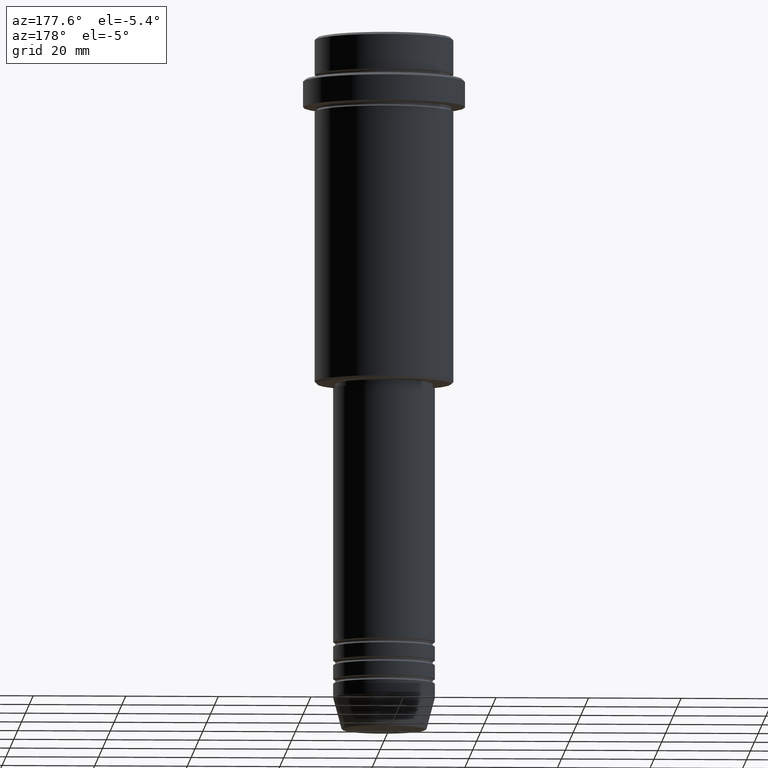
[diagram: clean part render]
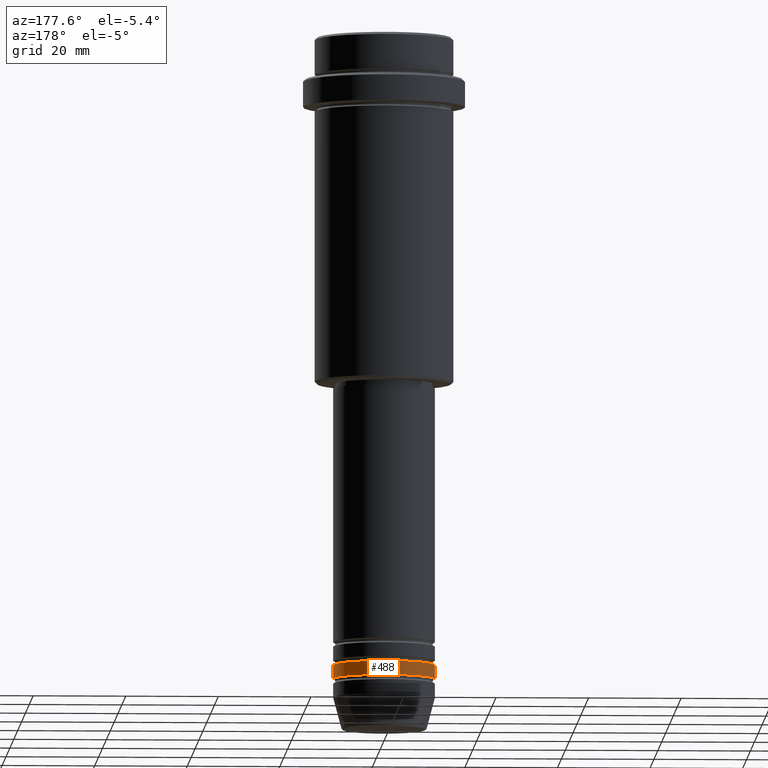
[diagram: same view with one face highlighted and labeled with its STEP entity id]
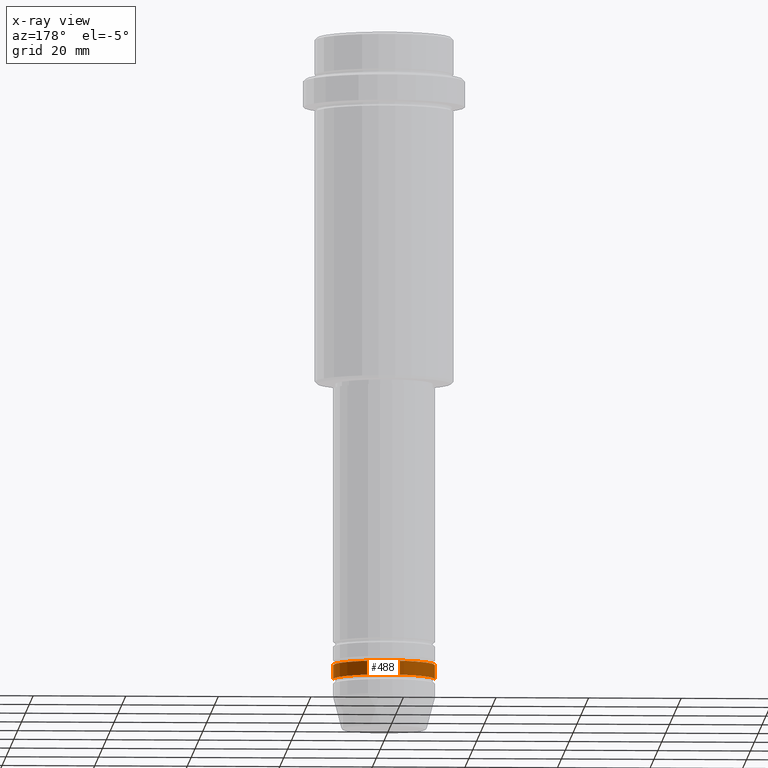
[diagram: x-ray of the same camera — body ghosted, the highlighted face saturated]
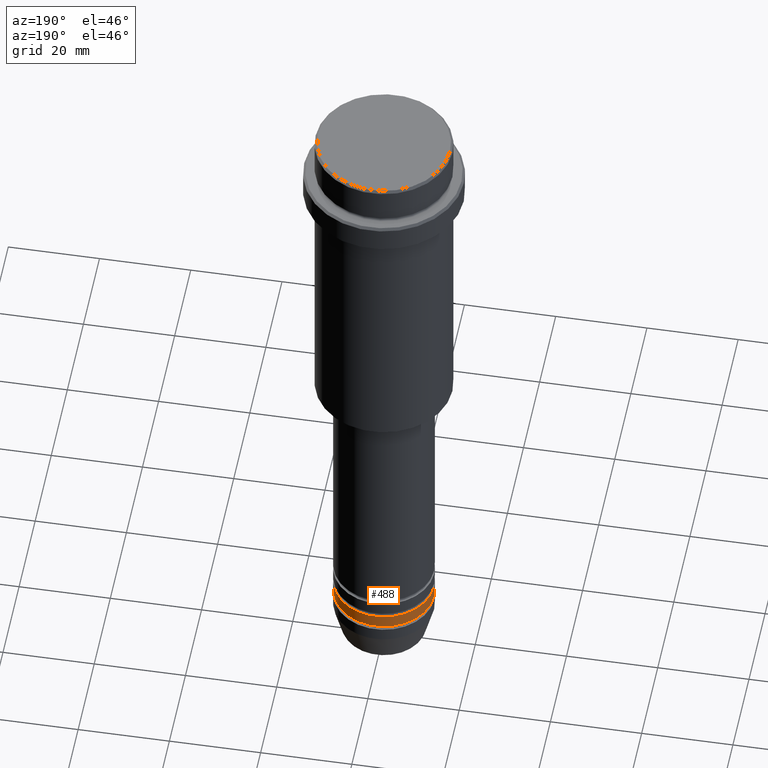
[diagram: same view with one face highlighted and labeled with its STEP entity id]
A machine part, auxiliary view. The second image highlights one B-rep face of the part: STEP entity #488.
The next image is the same camera in x-ray: the body ghosted, the highlighted face saturated — about 0% of this face is hidden behind the body in this view.
A second angle (auxiliary view) of the same face is appended — the face is thin or edge-on in the first view.
In plain terms, the highlighted cylindrical surface (partial cylindrical patch) has radius 11 mm, axis along (-0, -0, 1).
Its self-contained STEP definition (entity closure, byte-faithful):
#41 = DIRECTION ( 'NONE',  ( -0.000000000000000000, -0.000000000000000000, 1.000000000000000000 ) ) ;
#66 = ORIENTED_EDGE ( 'NONE', *, *, #116, .T. ) ;
#92 = VERTEX_POINT ( 'NONE', #424 ) ;
#116 = EDGE_CURVE ( 'NONE', #389, #92, #1287, .T. ) ;
#195 = CARTESIAN_POINT ( 'NONE',  ( -11.00000000000000000, 1.347111479062088405E-15, 0.000000000000000000 ) ) ;
#236 = EDGE_CURVE ( 'NONE', #389, #657, #1000, .T. ) ;
#322 = FACE_OUTER_BOUND ( 'NONE', #385, .T. ) ;
#329 = EDGE_CURVE ( 'NONE', #657, #1059, #567, .T. ) ;
#347 = EDGE_CURVE ( 'NONE', #92, #1059, #954, .T. ) ;
#385 = EDGE_LOOP ( 'NONE', ( #66, #580, #1315, #1070 ) ) ;
#389 = VERTEX_POINT ( 'NONE', #841 ) ;
#424 = CARTESIAN_POINT ( 'NONE',  ( -11.00000000000000000, 1.347111479062088405E-15, -138.9999999999999147 ) ) ;
#488 = ADVANCED_FACE ( 'NONE', ( #322 ), #849, .T. ) ;
#501 = AXIS2_PLACEMENT_3D ( 'NONE', #855, #1323, #632 ) ;
#523 = AXIS2_PLACEMENT_3D ( 'NONE', #1175, #736, #1388 ) ;
#567 = CIRCLE ( 'NONE', #523, 11.00000000000000000 ) ;
#580 = ORIENTED_EDGE ( 'NONE', *, *, #347, .T. ) ;
#587 = VECTOR ( 'NONE', #41, 1000.000000000000000 ) ;
#632 = DIRECTION ( 'NONE',  ( 1.000000000000000000, 0.000000000000000000, 0.000000000000000000 ) ) ;
#657 = VERTEX_POINT ( 'NONE', #934 ) ;
#736 = DIRECTION ( 'NONE',  ( -0.000000000000000000, -0.000000000000000000, 1.000000000000000000 ) ) ;
#785 = CARTESIAN_POINT ( 'NONE',  ( -11.00000000000000000, 1.347111479062088405E-15, -135.9999999999998863 ) ) ;
#840 = VECTOR ( 'NONE', #1062, 1000.000000000000000 ) ;
#841 = CARTESIAN_POINT ( 'NONE',  ( 11.00000000000000000, 0.000000000000000000, -138.9999999999999147 ) ) ;
#849 = CYLINDRICAL_SURFACE ( 'NONE', #501, 11.00000000000000000 ) ;
#855 = CARTESIAN_POINT ( 'NONE',  ( 0.000000000000000000, 0.000000000000000000, 0.000000000000000000 ) ) ;
#934 = CARTESIAN_POINT ( 'NONE',  ( 11.00000000000000000, 0.000000000000000000, -135.9999999999998863 ) ) ;
#954 = LINE ( 'NONE', #195, #840 ) ;
#1000 = LINE ( 'NONE', #1231, #587 ) ;
#1059 = VERTEX_POINT ( 'NONE', #785 ) ;
#1062 = DIRECTION ( 'NONE',  ( -0.000000000000000000, -0.000000000000000000, 1.000000000000000000 ) ) ;
#1070 = ORIENTED_EDGE ( 'NONE', *, *, #236, .F. ) ;
#1086 = DIRECTION ( 'NONE',  ( 1.000000000000000000, 0.000000000000000000, 0.000000000000000000 ) ) ;
#1090 = CARTESIAN_POINT ( 'NONE',  ( 0.000000000000000000, 0.000000000000000000, -138.9999999999999147 ) ) ;
#1099 = DIRECTION ( 'NONE',  ( -0.000000000000000000, -0.000000000000000000, 1.000000000000000000 ) ) ;
#1175 = CARTESIAN_POINT ( 'NONE',  ( 0.000000000000000000, 0.000000000000000000, -135.9999999999998863 ) ) ;
#1231 = CARTESIAN_POINT ( 'NONE',  ( 11.00000000000000000, 0.000000000000000000, 0.000000000000000000 ) ) ;
#1287 = CIRCLE ( 'NONE', #1373, 11.00000000000000000 ) ;
#1315 = ORIENTED_EDGE ( 'NONE', *, *, #329, .F. ) ;
#1323 = DIRECTION ( 'NONE',  ( -0.000000000000000000, -0.000000000000000000, 1.000000000000000000 ) ) ;
#1373 = AXIS2_PLACEMENT_3D ( 'NONE', #1090, #1099, #1086 ) ;
#1388 = DIRECTION ( 'NONE',  ( 1.000000000000000000, 0.000000000000000000, 0.000000000000000000 ) ) ;